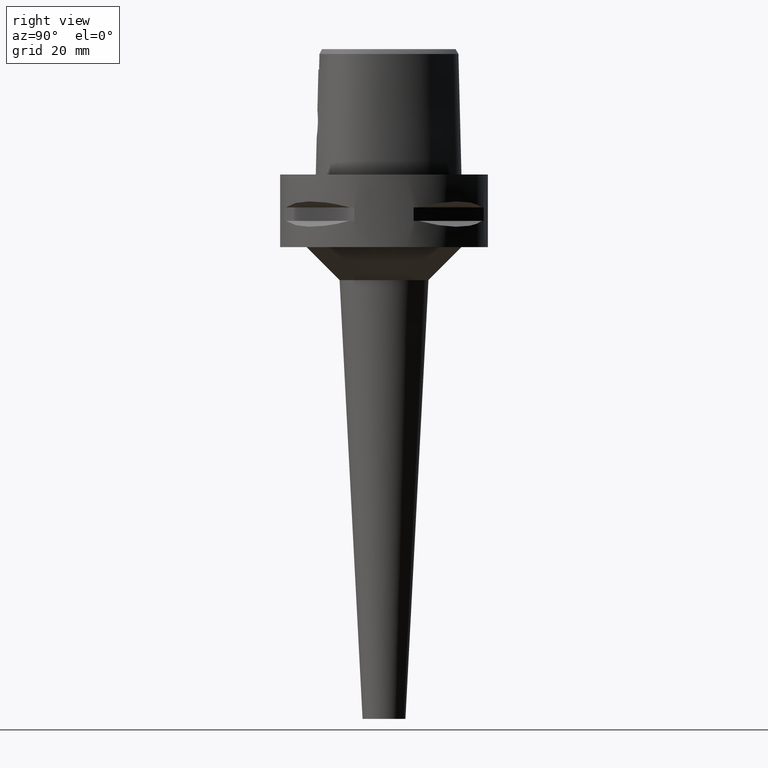
[diagram: clean part render]
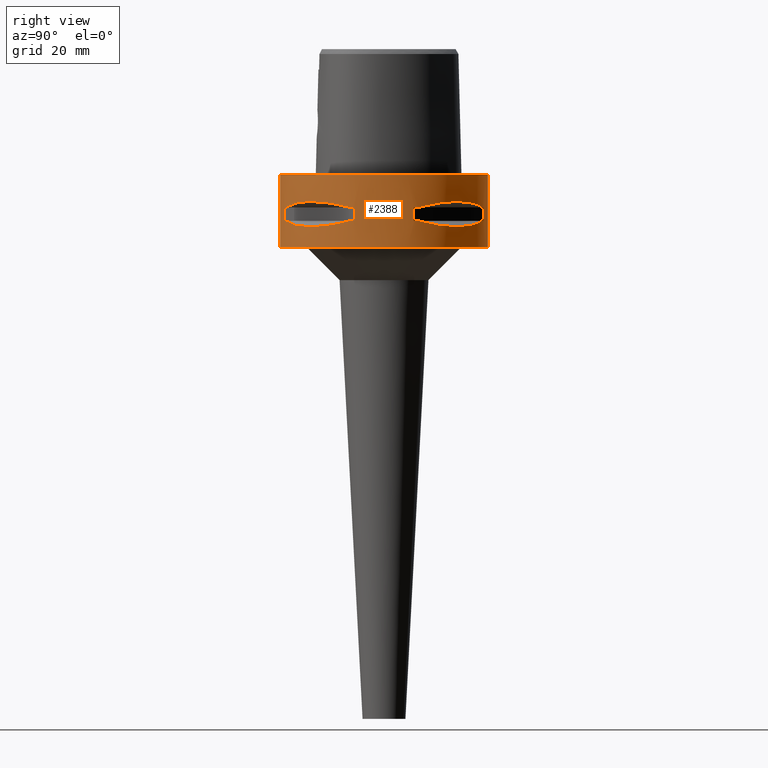
[diagram: same view with one face highlighted and labeled with its STEP entity id]
A machine part, right view. The second image highlights one B-rep face of the part: STEP entity #2388.
In plain terms, the highlighted cylindrical surface (partial cylindrical patch) has radius 31.5 mm, axis along (0, 0, -1).
Its self-contained STEP definition (entity closure, byte-faithful):
#283=CARTESIAN_POINT('',(0.E0,1.325680160077E-14,0.E0));
#284=DIRECTION('',(0.E0,0.E0,-1.E0));
#285=DIRECTION('',(0.E0,1.E0,0.E0));
#286=AXIS2_PLACEMENT_3D('',#283,#284,#285);
#371=DIRECTION('',(0.E0,0.E0,-1.E0));
#372=VECTOR('',#371,2.2E1);
#373=CARTESIAN_POINT('',(0.E0,-3.15E1,0.E0));
#374=LINE('',#373,#372);
#428=DIRECTION('',(0.E0,0.E0,-1.E0));
#429=VECTOR('',#428,2.2E1);
#430=CARTESIAN_POINT('',(0.E0,3.15E1,0.E0));
#431=LINE('',#430,#429);
#435=DIRECTION('',(0.E0,0.E0,-1.E0));
#436=VECTOR('',#435,4.1E0);
#437=CARTESIAN_POINT('',(8.981198972017E0,-3.019251670572E1,-9.95E0));
#438=LINE('',#437,#436);
#442=CARTESIAN_POINT('',(1.044775724750E1,-2.971690375018E1,-1.405E1));
#443=CARTESIAN_POINT('',(1.282388988809E1,-2.888151197365E1,-1.467900482380E1));
#444=CARTESIAN_POINT('',(1.711282138769E1,-2.674739463903E1,-1.555870402293E1));
#445=CARTESIAN_POINT('',(2.244574140438E1,-2.244574140438E1,-1.597971692371E1));
#446=CARTESIAN_POINT('',(2.674739463903E1,-1.711282138769E1,-1.555870402293E1));
#447=CARTESIAN_POINT('',(2.888151197365E1,-1.282388988809E1,-1.467900482380E1));
#448=CARTESIAN_POINT('',(2.971690375018E1,-1.044775724750E1,-1.405E1));
#453=DIRECTION('',(0.E0,0.E0,1.E0));
#454=VECTOR('',#453,4.1E0);
#455=CARTESIAN_POINT('',(3.019251670572E1,-8.981198972017E0,-1.405E1));
#456=LINE('',#455,#454);
#460=DIRECTION('',(0.E0,0.E0,-1.E0));
#461=VECTOR('',#460,4.1E0);
#462=CARTESIAN_POINT('',(3.019251670572E1,8.981198972017E0,-9.95E0));
#463=LINE('',#462,#461);
#467=CARTESIAN_POINT('',(2.971690375018E1,1.044775724750E1,-1.405E1));
#468=CARTESIAN_POINT('',(2.888151197365E1,1.282388988809E1,-1.467900482380E1));
#469=CARTESIAN_POINT('',(2.674739463903E1,1.711282138769E1,-1.555870402293E1));
#470=CARTESIAN_POINT('',(2.244574140438E1,2.244574140438E1,-1.597971692371E1));
#471=CARTESIAN_POINT('',(1.711282138769E1,2.674739463903E1,-1.555870402293E1));
#472=CARTESIAN_POINT('',(1.282388988809E1,2.888151197365E1,-1.467900482380E1));
#473=CARTESIAN_POINT('',(1.044775724750E1,2.971690375018E1,-1.405E1));
#478=DIRECTION('',(0.E0,0.E0,1.E0));
#479=VECTOR('',#478,4.1E0);
#480=CARTESIAN_POINT('',(8.981198972017E0,3.019251670572E1,-1.405E1));
#481=LINE('',#480,#479);
#485=CARTESIAN_POINT('',(0.E0,1.325680160077E-14,-2.2E1));
#486=DIRECTION('',(0.E0,0.E0,1.E0));
#487=DIRECTION('',(0.E0,-1.E0,0.E0));
#488=AXIS2_PLACEMENT_3D('',#485,#486,#487);
#1148=CARTESIAN_POINT('',(1.044775724750E1,-2.971690375018E1,
-9.950000000001E0));
#1149=CARTESIAN_POINT('',(1.282388988809E1,-2.888151197365E1,
-9.320995176200E0));
#1150=CARTESIAN_POINT('',(1.711282138769E1,-2.674739463903E1,
-8.441295977077E0));
#1151=CARTESIAN_POINT('',(2.244574140438E1,-2.244574140438E1,
-8.020283076297E0));
#1152=CARTESIAN_POINT('',(2.674739463903E1,-1.711282138769E1,
-8.441295977077E0));
#1153=CARTESIAN_POINT('',(2.888151197365E1,-1.282388988809E1,
-9.320995176200E0));
#1154=CARTESIAN_POINT('',(2.971690375018E1,-1.044775724750E1,
-9.950000000001E0));
#1159=CARTESIAN_POINT('',(0.E0,1.325680160077E-14,-9.95E0));
#1160=DIRECTION('',(0.E0,0.E0,1.E0));
#1161=DIRECTION('',(9.433937698469E-1,-3.316748332541E-1,0.E0));
#1162=AXIS2_PLACEMENT_3D('',#1159,#1160,#1161);
#1167=CARTESIAN_POINT('',(0.E0,1.325680160077E-14,-9.95E0));
#1168=DIRECTION('',(0.E0,0.E0,1.E0));
#1169=DIRECTION('',(2.851174276832E-1,-9.584925938323E-1,0.E0));
#1170=AXIS2_PLACEMENT_3D('',#1167,#1168,#1169);
#1189=CARTESIAN_POINT('',(0.E0,1.325680160077E-14,-1.405E1));
#1190=DIRECTION('',(0.E0,0.E0,-1.E0));
#1191=DIRECTION('',(9.584925938323E-1,-2.851174276832E-1,0.E0));
#1192=AXIS2_PLACEMENT_3D('',#1189,#1190,#1191);
#1197=CARTESIAN_POINT('',(0.E0,1.325680160077E-14,-1.405E1));
#1198=DIRECTION('',(0.E0,0.E0,-1.E0));
#1199=DIRECTION('',(3.316748332541E-1,-9.433937698469E-1,0.E0));
#1200=AXIS2_PLACEMENT_3D('',#1197,#1198,#1199);
#1219=CARTESIAN_POINT('',(2.971690375018E1,1.044775724750E1,-9.950000000001E0));
#1220=CARTESIAN_POINT('',(2.888151197365E1,1.282388988809E1,-9.320995176200E0));
#1221=CARTESIAN_POINT('',(2.674739463903E1,1.711282138769E1,-8.441295977077E0));
#1222=CARTESIAN_POINT('',(2.244574140438E1,2.244574140438E1,-8.020283076297E0));
#1223=CARTESIAN_POINT('',(1.711282138769E1,2.674739463903E1,-8.441295977077E0));
#1224=CARTESIAN_POINT('',(1.282388988809E1,2.888151197365E1,-9.320995176200E0));
#1225=CARTESIAN_POINT('',(1.044775724750E1,2.971690375018E1,-9.950000000001E0));
#1230=CARTESIAN_POINT('',(0.E0,1.325680160077E-14,-9.95E0));
#1231=DIRECTION('',(0.E0,0.E0,1.E0));
#1232=DIRECTION('',(3.316748332541E-1,9.433937698469E-1,0.E0));
#1233=AXIS2_PLACEMENT_3D('',#1230,#1231,#1232);
#1238=CARTESIAN_POINT('',(0.E0,1.325680160077E-14,-9.95E0));
#1239=DIRECTION('',(0.E0,0.E0,1.E0));
#1240=DIRECTION('',(9.584925938323E-1,2.851174276832E-1,0.E0));
#1241=AXIS2_PLACEMENT_3D('',#1238,#1239,#1240);
#1260=CARTESIAN_POINT('',(0.E0,1.325680160077E-14,-1.405E1));
#1261=DIRECTION('',(0.E0,0.E0,-1.E0));
#1262=DIRECTION('',(2.851174276832E-1,9.584925938323E-1,0.E0));
#1263=AXIS2_PLACEMENT_3D('',#1260,#1261,#1262);
#1268=CARTESIAN_POINT('',(0.E0,1.325680160077E-14,-1.405E1));
#1269=DIRECTION('',(0.E0,0.E0,-1.E0));
#1270=DIRECTION('',(9.433937698469E-1,3.316748332541E-1,0.E0));
#1271=AXIS2_PLACEMENT_3D('',#1268,#1269,#1270);
#1458=CARTESIAN_POINT('',(0.E0,-3.15E1,0.E0));
#1459=CARTESIAN_POINT('',(0.E0,3.15E1,0.E0));
#1460=VERTEX_POINT('',#1458);
#1461=VERTEX_POINT('',#1459);
#1462=CARTESIAN_POINT('',(0.E0,3.15E1,-2.2E1));
#1463=VERTEX_POINT('',#1462);
#1464=CARTESIAN_POINT('',(0.E0,-3.15E1,-2.2E1));
#1465=VERTEX_POINT('',#1464);
#1492=VERTEX_POINT('',#1148);
#1493=VERTEX_POINT('',#1154);
#1494=CARTESIAN_POINT('',(8.981198972020E0,-3.019251670572E1,-9.95E0));
#1495=VERTEX_POINT('',#1494);
#1496=CARTESIAN_POINT('',(8.981198972017E0,-3.019251670572E1,-1.405E1));
#1497=VERTEX_POINT('',#1496);
#1498=CARTESIAN_POINT('',(1.044775724750E1,-2.971690375018E1,-1.405E1));
#1499=VERTEX_POINT('',#1498);
#1500=VERTEX_POINT('',#448);
#1501=CARTESIAN_POINT('',(3.019251670572E1,-8.981198972020E0,-1.405E1));
#1502=VERTEX_POINT('',#1501);
#1503=CARTESIAN_POINT('',(3.019251670572E1,-8.981198972017E0,-9.95E0));
#1504=VERTEX_POINT('',#1503);
#1505=VERTEX_POINT('',#1219);
#1506=VERTEX_POINT('',#1225);
#1507=CARTESIAN_POINT('',(3.019251670572E1,8.981198972020E0,-9.95E0));
#1508=VERTEX_POINT('',#1507);
#1509=CARTESIAN_POINT('',(3.019251670572E1,8.981198972017E0,-1.405E1));
#1510=VERTEX_POINT('',#1509);
#1511=CARTESIAN_POINT('',(2.971690375018E1,1.044775724750E1,-1.405E1));
#1512=VERTEX_POINT('',#1511);
#1513=VERTEX_POINT('',#473);
#1514=CARTESIAN_POINT('',(8.981198972020E0,3.019251670572E1,-1.405E1));
#1515=VERTEX_POINT('',#1514);
#1516=CARTESIAN_POINT('',(8.981198972017E0,3.019251670572E1,-9.95E0));
#1517=VERTEX_POINT('',#1516);
#2340=CARTESIAN_POINT('',(0.E0,1.325680160077E-14,8.25E0));
#2341=DIRECTION('',(0.E0,0.E0,-1.E0));
#2342=DIRECTION('',(0.E0,-1.E0,0.E0));
#2343=AXIS2_PLACEMENT_3D('',#2340,#2341,#2342);
#2344=CYLINDRICAL_SURFACE('',#2343,3.15E1);
#2345=ORIENTED_EDGE('',*,*,#2294,.T.);
#2347=ORIENTED_EDGE('',*,*,#2346,.F.);
#2348=ORIENTED_EDGE('',*,*,#2297,.F.);
#2349=ORIENTED_EDGE('',*,*,#2279,.F.);
#2350=EDGE_LOOP('',(#2345,#2347,#2348,#2349));
#2351=FACE_OUTER_BOUND('',#2350,.F.);
#2353=ORIENTED_EDGE('',*,*,#2352,.F.);
#2355=ORIENTED_EDGE('',*,*,#2354,.F.);
#2357=ORIENTED_EDGE('',*,*,#2356,.T.);
#2359=ORIENTED_EDGE('',*,*,#2358,.F.);
#2361=ORIENTED_EDGE('',*,*,#2360,.T.);
#2363=ORIENTED_EDGE('',*,*,#2362,.F.);
#2365=ORIENTED_EDGE('',*,*,#2364,.T.);
#2367=ORIENTED_EDGE('',*,*,#2366,.F.);
#2368=EDGE_LOOP('',(#2353,#2355,#2357,#2359,#2361,#2363,#2365,#2367));
#2369=FACE_BOUND('',#2368,.F.);
#2371=ORIENTED_EDGE('',*,*,#2370,.F.);
#2373=ORIENTED_EDGE('',*,*,#2372,.F.);
#2375=ORIENTED_EDGE('',*,*,#2374,.T.);
#2377=ORIENTED_EDGE('',*,*,#2376,.F.);
#2379=ORIENTED_EDGE('',*,*,#2378,.T.);
#2381=ORIENTED_EDGE('',*,*,#2380,.F.);
#2383=ORIENTED_EDGE('',*,*,#2382,.T.);
#2385=ORIENTED_EDGE('',*,*,#2384,.F.);
#2386=EDGE_LOOP('',(#2371,#2373,#2375,#2377,#2379,#2381,#2383,#2385));
#2387=FACE_BOUND('',#2386,.F.);
#287=CIRCLE('',#286,3.15E1);
#449=B_SPLINE_CURVE_WITH_KNOTS('',3,(#442,#443,#444,#445,#446,#447,#448),
.UNSPECIFIED.,.F.,.F.,(4,1,1,1,4),(0.E0,2.5E-1,5.E-1,7.5E-1,1.E0),
.UNSPECIFIED.);
#474=B_SPLINE_CURVE_WITH_KNOTS('',3,(#467,#468,#469,#470,#471,#472,#473),
.UNSPECIFIED.,.F.,.F.,(4,1,1,1,4),(0.E0,2.5E-1,5.E-1,7.5E-1,1.E0),
.UNSPECIFIED.);
#489=CIRCLE('',#488,3.15E1);
#1155=B_SPLINE_CURVE_WITH_KNOTS('',3,(#1148,#1149,#1150,#1151,#1152,#1153,
#1154),.UNSPECIFIED.,.F.,.F.,(4,1,1,1,4),(0.E0,2.5E-1,5.E-1,7.5E-1,1.E0),
.UNSPECIFIED.);
#1163=CIRCLE('',#1162,3.15E1);
#1171=CIRCLE('',#1170,3.15E1);
#1193=CIRCLE('',#1192,3.15E1);
#1201=CIRCLE('',#1200,3.15E1);
#1226=B_SPLINE_CURVE_WITH_KNOTS('',3,(#1219,#1220,#1221,#1222,#1223,#1224,
#1225),.UNSPECIFIED.,.F.,.F.,(4,1,1,1,4),(0.E0,2.5E-1,5.E-1,7.5E-1,1.E0),
.UNSPECIFIED.);
#1234=CIRCLE('',#1233,3.15E1);
#1242=CIRCLE('',#1241,3.15E1);
#1264=CIRCLE('',#1263,3.15E1);
#1272=CIRCLE('',#1271,3.15E1);
#2279=EDGE_CURVE('',#1461,#1460,#287,.T.);
#2294=EDGE_CURVE('',#1461,#1463,#431,.T.);
#2297=EDGE_CURVE('',#1460,#1465,#374,.T.);
#2346=EDGE_CURVE('',#1465,#1463,#489,.T.);
#2352=EDGE_CURVE('',#1492,#1493,#1155,.T.);
#2354=EDGE_CURVE('',#1495,#1492,#1171,.T.);
#2356=EDGE_CURVE('',#1495,#1497,#438,.T.);
#2358=EDGE_CURVE('',#1499,#1497,#1201,.T.);
#2360=EDGE_CURVE('',#1499,#1500,#449,.T.);
#2362=EDGE_CURVE('',#1502,#1500,#1193,.T.);
#2364=EDGE_CURVE('',#1502,#1504,#456,.T.);
#2366=EDGE_CURVE('',#1493,#1504,#1163,.T.);
#2370=EDGE_CURVE('',#1505,#1506,#1226,.T.);
#2372=EDGE_CURVE('',#1508,#1505,#1242,.T.);
#2374=EDGE_CURVE('',#1508,#1510,#463,.T.);
#2376=EDGE_CURVE('',#1512,#1510,#1272,.T.);
#2378=EDGE_CURVE('',#1512,#1513,#474,.T.);
#2380=EDGE_CURVE('',#1515,#1513,#1264,.T.);
#2382=EDGE_CURVE('',#1515,#1517,#481,.T.);
#2384=EDGE_CURVE('',#1506,#1517,#1234,.T.);
#2388=ADVANCED_FACE('',(#2351,#2369,#2387),#2344,.T.);